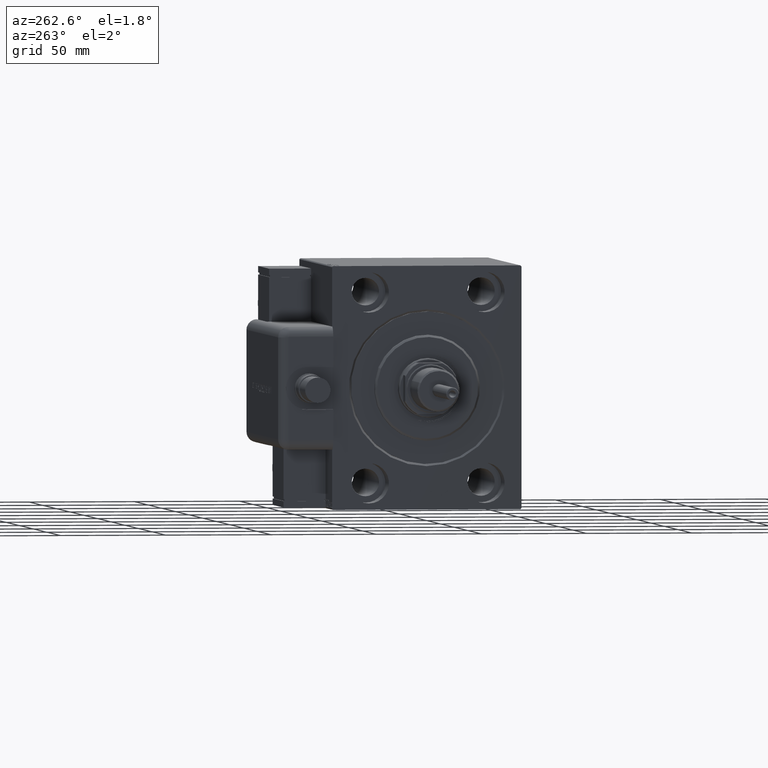
[diagram: clean part render]
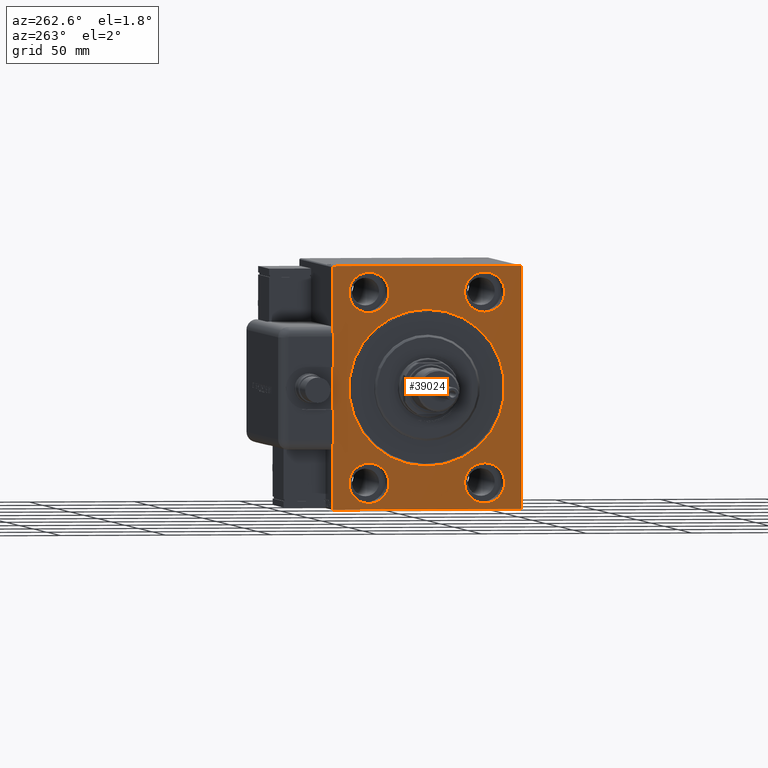
[diagram: same view with one face highlighted and labeled with its STEP entity id]
A machine part, auxiliary view. The second image highlights one B-rep face of the part: STEP entity #39024.
In plain terms, the highlighted planar face has unit normal (1, 0, 0).
Its self-contained STEP definition (entity closure, byte-faithful):
#179 = DIRECTION ( 'NONE',  ( -1.000000000000000000, 0.000000000000000000, 0.000000000000000000 ) ) ;
#1364 = ORIENTED_EDGE ( 'NONE', *, *, #54391, .F. ) ;
#1403 = CARTESIAN_POINT ( 'NONE',  ( 0.000000000000000000, -45.00000000000000000, -57.50000000000001421 ) ) ;
#1863 = DIRECTION ( 'NONE',  ( -1.000000000000000000, 0.000000000000000000, 0.000000000000000000 ) ) ;
#2289 = LINE ( 'NONE', #20552, #16722 ) ;
#2396 = VERTEX_POINT ( 'NONE', #21268 ) ;
#2467 = EDGE_LOOP ( 'NONE', ( #25810, #50177 ) ) ;
#2539 = EDGE_CURVE ( 'NONE', #24077, #59270, #34191, .T. ) ;
#2614 = FACE_BOUND ( 'NONE', #2467, .T. ) ;
#2809 = CIRCLE ( 'NONE', #40303, 9.500000000000001776 ) ;
#3446 = EDGE_CURVE ( 'NONE', #31171, #5051, #59015, .T. ) ;
#3763 = EDGE_CURVE ( 'NONE', #22023, #5314, #19597, .T. ) ;
#3825 = DIRECTION ( 'NONE',  ( 1.000000000000000000, 0.000000000000000000, 0.000000000000000000 ) ) ;
#4139 = EDGE_CURVE ( 'NONE', #20532, #24626, #8711, .T. ) ;
#5000 = EDGE_LOOP ( 'NONE', ( #30606, #30364, #25528, #57837, #56919, #53265, #47153, #14668 ) ) ;
#5051 = VERTEX_POINT ( 'NONE', #60961 ) ;
#5314 = VERTEX_POINT ( 'NONE', #57414 ) ;
#5555 = DIRECTION ( 'NONE',  ( -1.000000000000000000, 0.000000000000000000, 0.000000000000000000 ) ) ;
#5680 = ORIENTED_EDGE ( 'NONE', *, *, #3446, .F. ) ;
#5776 = VERTEX_POINT ( 'NONE', #16214 ) ;
#6190 = EDGE_CURVE ( 'NONE', #10074, #5776, #22209, .T. ) ;
#6307 = CARTESIAN_POINT ( 'NONE',  ( 0.000000000000000000, 0.000000000000000000, 0.000000000000000000 ) ) ;
#6381 = VERTEX_POINT ( 'NONE', #15702 ) ;
#6712 = EDGE_CURVE ( 'NONE', #58173, #59949, #2289, .T. ) ;
#7199 = EDGE_LOOP ( 'NONE', ( #21769, #51582 ) ) ;
#7654 = VECTOR ( 'NONE', #58003, 1000.000000000000114 ) ;
#7696 = AXIS2_PLACEMENT_3D ( 'NONE', #30762, #16576, #40331 ) ;
#7849 = FACE_BOUND ( 'NONE', #7199, .T. ) ;
#7972 = DIRECTION ( 'NONE',  ( -0.000000000000000000, 0.7071067811865474617, 0.7071067811865474617 ) ) ;
#8378 = EDGE_CURVE ( 'NONE', #10074, #59949, #41847, .T. ) ;
#8711 = CIRCLE ( 'NONE', #58066, 9.500000000000001776 ) ;
#9333 = EDGE_CURVE ( 'NONE', #17832, #53588, #13755, .T. ) ;
#9651 = DIRECTION ( 'NONE',  ( -1.000000000000000000, 0.000000000000000000, 0.000000000000000000 ) ) ;
#10074 = VERTEX_POINT ( 'NONE', #36297 ) ;
#10094 = LINE ( 'NONE', #47804, #18073 ) ;
#10139 = CIRCLE ( 'NONE', #33822, 9.500000000000001776 ) ;
#11065 = VECTOR ( 'NONE', #21168, 1000.000000000000000 ) ;
#11730 = CARTESIAN_POINT ( 'NONE',  ( 0.000000000000000000, 0.000000000000000000, 0.000000000000000000 ) ) ;
#12707 = AXIS2_PLACEMENT_3D ( 'NONE', #31944, #3825, #36261 ) ;
#12810 = FACE_BOUND ( 'NONE', #42147, .T. ) ;
#13046 = CIRCLE ( 'NONE', #48565, 9.500000000000001776 ) ;
#13080 = CIRCLE ( 'NONE', #41695, 37.00000000000003553 ) ;
#13437 = CARTESIAN_POINT ( 'NONE',  ( 0.000000000000000000, 27.50000000000000000, 35.50000000000000000 ) ) ;
#13755 = CIRCLE ( 'NONE', #29551, 9.500000000000001776 ) ;
#14099 = CARTESIAN_POINT ( 'NONE',  ( 0.000000000000000000, -27.50000000000000000, -45.00000000000000000 ) ) ;
#14278 = CIRCLE ( 'NONE', #34939, 9.500000000000001776 ) ;
#14632 = ORIENTED_EDGE ( 'NONE', *, *, #4139, .F. ) ;
#14668 = ORIENTED_EDGE ( 'NONE', *, *, #6712, .T. ) ;
#15702 = CARTESIAN_POINT ( 'NONE',  ( 0.000000000000000000, -27.50000000000000000, 54.50000000000000000 ) ) ;
#15769 = DIRECTION ( 'NONE',  ( 0.000000000000000000, 0.000000000000000000, 1.000000000000000000 ) ) ;
#15778 = DIRECTION ( 'NONE',  ( 1.000000000000000000, 0.000000000000000000, 0.000000000000000000 ) ) ;
#16126 = EDGE_CURVE ( 'NONE', #58173, #2396, #39697, .T. ) ;
#16214 = CARTESIAN_POINT ( 'NONE',  ( 0.000000000000000000, -44.50000000000000000, 57.49999999999998579 ) ) ;
#16576 = DIRECTION ( 'NONE',  ( -1.000000000000000000, 0.000000000000000000, 0.000000000000000000 ) ) ;
#16722 = VECTOR ( 'NONE', #21152, 1000.000000000000114 ) ;
#16963 = CARTESIAN_POINT ( 'NONE',  ( 0.000000000000000000, -44.50000000000002842, -57.50000000000001421 ) ) ;
#17832 = VERTEX_POINT ( 'NONE', #54389 ) ;
#18073 = VECTOR ( 'NONE', #53056, 1000.000000000000000 ) ;
#18375 = CARTESIAN_POINT ( 'NONE',  ( 0.000000000000000000, -45.00000000000000000, 57.49999999999998579 ) ) ;
#18430 = LINE ( 'NONE', #55826, #34988 ) ;
#19597 = CIRCLE ( 'NONE', #45255, 37.00000000000003553 ) ;
#19993 = ORIENTED_EDGE ( 'NONE', *, *, #23413, .F. ) ;
#20532 = VERTEX_POINT ( 'NONE', #44474 ) ;
#20552 = CARTESIAN_POINT ( 'NONE',  ( 0.000000000000000000, -44.50000000000002842, -57.50000000000001421 ) ) ;
#21152 = DIRECTION ( 'NONE',  ( -0.000000000000000000, -0.7071067811865474617, 0.7071067811865474617 ) ) ;
#21168 = DIRECTION ( 'NONE',  ( 0.000000000000000000, 1.000000000000000000, 0.000000000000000000 ) ) ;
#21268 = CARTESIAN_POINT ( 'NONE',  ( 0.000000000000000000, 44.49999999999995737, -57.50000000000001421 ) ) ;
#21309 = EDGE_CURVE ( 'NONE', #5314, #22023, #13080, .T. ) ;
#21769 = ORIENTED_EDGE ( 'NONE', *, *, #9333, .F. ) ;
#22023 = VERTEX_POINT ( 'NONE', #53532 ) ;
#22209 = LINE ( 'NONE', #37313, #46307 ) ;
#23413 = EDGE_CURVE ( 'NONE', #6381, #46017, #23988, .T. ) ;
#23988 = CIRCLE ( 'NONE', #58529, 9.500000000000001776 ) ;
#24077 = VERTEX_POINT ( 'NONE', #33088 ) ;
#24626 = VERTEX_POINT ( 'NONE', #45556 ) ;
#25528 = ORIENTED_EDGE ( 'NONE', *, *, #47484, .F. ) ;
#25810 = ORIENTED_EDGE ( 'NONE', *, *, #21309, .T. ) ;
#26701 = FACE_OUTER_BOUND ( 'NONE', #5000, .T. ) ;
#27087 = EDGE_CURVE ( 'NONE', #39422, #2396, #18430, .T. ) ;
#27377 = DIRECTION ( 'NONE',  ( 0.000000000000000000, 0.000000000000000000, 1.000000000000000000 ) ) ;
#27500 = VECTOR ( 'NONE', #27629, 1000.000000000000000 ) ;
#27629 = DIRECTION ( 'NONE',  ( 0.000000000000000000, 0.000000000000000000, -1.000000000000000000 ) ) ;
#27675 = DIRECTION ( 'NONE',  ( -1.000000000000000000, 0.000000000000000000, 0.000000000000000000 ) ) ;
#27848 = CARTESIAN_POINT ( 'NONE',  ( 0.000000000000000000, 45.00000000000000000, -57.00000000000001421 ) ) ;
#28007 = CARTESIAN_POINT ( 'NONE',  ( 0.000000000000000000, -27.50000000000000000, 35.50000000000000000 ) ) ;
#29496 = DIRECTION ( 'NONE',  ( 0.000000000000000000, 0.000000000000000000, -1.000000000000000000 ) ) ;
#29551 = AXIS2_PLACEMENT_3D ( 'NONE', #31282, #36520, #54792 ) ;
#30127 = DIRECTION ( 'NONE',  ( -1.000000000000000000, 0.000000000000000000, 0.000000000000000000 ) ) ;
#30364 = ORIENTED_EDGE ( 'NONE', *, *, #6190, .T. ) ;
#30606 = ORIENTED_EDGE ( 'NONE', *, *, #8378, .F. ) ;
#30762 = CARTESIAN_POINT ( 'NONE',  ( 0.000000000000000000, 27.50000000000000000, 45.00000000000000000 ) ) ;
#31171 = VERTEX_POINT ( 'NONE', #13437 ) ;
#31282 = CARTESIAN_POINT ( 'NONE',  ( 0.000000000000000000, 27.50000000000000000, -45.00000000000000000 ) ) ;
#31944 = CARTESIAN_POINT ( 'NONE',  ( 0.000000000000000000, 0.000000000000000000, 0.000000000000000000 ) ) ;
#33088 = CARTESIAN_POINT ( 'NONE',  ( 0.000000000000000000, 44.50000000000001421, 57.50000000000000000 ) ) ;
#33822 = AXIS2_PLACEMENT_3D ( 'NONE', #39218, #5555, #15769 ) ;
#33850 = CARTESIAN_POINT ( 'NONE',  ( 0.000000000000000000, 27.50000000000000000, -45.00000000000000000 ) ) ;
#34191 = LINE ( 'NONE', #53061, #7654 ) ;
#34939 = AXIS2_PLACEMENT_3D ( 'NONE', #53792, #1863, #40154 ) ;
#34988 = VECTOR ( 'NONE', #60447, 999.9999999999998863 ) ;
#35507 = EDGE_LOOP ( 'NONE', ( #57516, #5680 ) ) ;
#36261 = DIRECTION ( 'NONE',  ( 0.000000000000000000, 0.000000000000000000, -1.000000000000000000 ) ) ;
#36297 = CARTESIAN_POINT ( 'NONE',  ( 0.000000000000000000, -45.00000000000000000, 57.00000000000001421 ) ) ;
#36520 = DIRECTION ( 'NONE',  ( -1.000000000000000000, 0.000000000000000000, 0.000000000000000000 ) ) ;
#37058 = DIRECTION ( 'NONE',  ( 0.000000000000000000, -1.000000000000000000, -1.541976423090495633E-16 ) ) ;
#37313 = CARTESIAN_POINT ( 'NONE',  ( 0.000000000000000000, -45.00000000000000000, 57.00000000000001421 ) ) ;
#37928 = EDGE_CURVE ( 'NONE', #53588, #17832, #2809, .T. ) ;
#39024 = ADVANCED_FACE ( 'NONE', ( #2614, #12810, #59765, #59470, #7849, #26701 ), #59163, .F. ) ;
#39218 = CARTESIAN_POINT ( 'NONE',  ( 0.000000000000000000, -27.50000000000000000, 45.00000000000000000 ) ) ;
#39241 = CARTESIAN_POINT ( 'NONE',  ( 0.000000000000000000, 44.99999999999998579, 57.00000000000000000 ) ) ;
#39422 = VERTEX_POINT ( 'NONE', #27848 ) ;
#39697 = LINE ( 'NONE', #1403, #11065 ) ;
#40154 = DIRECTION ( 'NONE',  ( 0.000000000000000000, 0.000000000000000000, 1.000000000000000000 ) ) ;
#40303 = AXIS2_PLACEMENT_3D ( 'NONE', #33850, #30127, #48684 ) ;
#40331 = DIRECTION ( 'NONE',  ( 0.000000000000000000, 0.000000000000000000, 1.000000000000000000 ) ) ;
#41695 = AXIS2_PLACEMENT_3D ( 'NONE', #11730, #15778, #58103 ) ;
#41847 = LINE ( 'NONE', #18375, #27500 ) ;
#41892 = DIRECTION ( 'NONE',  ( 0.000000000000000000, 0.000000000000000000, 1.000000000000000000 ) ) ;
#42147 = EDGE_LOOP ( 'NONE', ( #14632, #1364 ) ) ;
#42404 = CARTESIAN_POINT ( 'NONE',  ( 0.000000000000000000, -27.50000000000000000, -45.00000000000000000 ) ) ;
#44474 = CARTESIAN_POINT ( 'NONE',  ( 0.000000000000000000, -27.50000000000000000, -35.50000000000000000 ) ) ;
#45255 = AXIS2_PLACEMENT_3D ( 'NONE', #6307, #48651, #29496 ) ;
#45556 = CARTESIAN_POINT ( 'NONE',  ( 0.000000000000000000, -27.50000000000000000, -54.50000000000000000 ) ) ;
#46017 = VERTEX_POINT ( 'NONE', #28007 ) ;
#46307 = VECTOR ( 'NONE', #7972, 1000.000000000000114 ) ;
#46347 = LINE ( 'NONE', #55632, #50408 ) ;
#46535 = CARTESIAN_POINT ( 'NONE',  ( 0.000000000000000000, -27.50000000000000000, 45.00000000000000000 ) ) ;
#47153 = ORIENTED_EDGE ( 'NONE', *, *, #16126, .F. ) ;
#47484 = EDGE_CURVE ( 'NONE', #24077, #5776, #46347, .T. ) ;
#47804 = CARTESIAN_POINT ( 'NONE',  ( 0.000000000000000000, 45.00000000000000000, -57.50000000000001421 ) ) ;
#48565 = AXIS2_PLACEMENT_3D ( 'NONE', #14099, #179, #27377 ) ;
#48651 = DIRECTION ( 'NONE',  ( 1.000000000000000000, 0.000000000000000000, 0.000000000000000000 ) ) ;
#48679 = CARTESIAN_POINT ( 'NONE',  ( 0.000000000000000000, 27.50000000000000000, -54.50000000000000000 ) ) ;
#48684 = DIRECTION ( 'NONE',  ( 0.000000000000000000, 0.000000000000000000, 1.000000000000000000 ) ) ;
#50177 = ORIENTED_EDGE ( 'NONE', *, *, #3763, .T. ) ;
#50408 = VECTOR ( 'NONE', #37058, 1000.000000000000000 ) ;
#51582 = ORIENTED_EDGE ( 'NONE', *, *, #37928, .F. ) ;
#51719 = ORIENTED_EDGE ( 'NONE', *, *, #54990, .F. ) ;
#53056 = DIRECTION ( 'NONE',  ( 0.000000000000000000, -1.206764157201257045E-16, 1.000000000000000000 ) ) ;
#53061 = CARTESIAN_POINT ( 'NONE',  ( 0.000000000000000000, 44.50000000000001421, 57.50000000000000000 ) ) ;
#53265 = ORIENTED_EDGE ( 'NONE', *, *, #27087, .T. ) ;
#53532 = CARTESIAN_POINT ( 'NONE',  ( 0.000000000000000000, 4.531193156845210737E-15, -37.00000000000003553 ) ) ;
#53588 = VERTEX_POINT ( 'NONE', #48679 ) ;
#53792 = CARTESIAN_POINT ( 'NONE',  ( 0.000000000000000000, 27.50000000000000000, 45.00000000000000000 ) ) ;
#54389 = CARTESIAN_POINT ( 'NONE',  ( 0.000000000000000000, 27.50000000000000000, -35.50000000000000000 ) ) ;
#54391 = EDGE_CURVE ( 'NONE', #24626, #20532, #13046, .T. ) ;
#54792 = DIRECTION ( 'NONE',  ( 0.000000000000000000, 0.000000000000000000, 1.000000000000000000 ) ) ;
#54990 = EDGE_CURVE ( 'NONE', #46017, #6381, #10139, .T. ) ;
#55632 = CARTESIAN_POINT ( 'NONE',  ( 0.000000000000000000, 44.99999999999998579, 57.50000000000000000 ) ) ;
#55826 = CARTESIAN_POINT ( 'NONE',  ( 0.000000000000000000, 45.00000000000000000, -57.00000000000001421 ) ) ;
#56002 = EDGE_CURVE ( 'NONE', #39422, #59270, #10094, .T. ) ;
#56919 = ORIENTED_EDGE ( 'NONE', *, *, #56002, .F. ) ;
#57414 = CARTESIAN_POINT ( 'NONE',  ( 0.000000000000000000, 0.000000000000000000, 37.00000000000003553 ) ) ;
#57516 = ORIENTED_EDGE ( 'NONE', *, *, #60217, .F. ) ;
#57557 = DIRECTION ( 'NONE',  ( 0.000000000000000000, 0.000000000000000000, 1.000000000000000000 ) ) ;
#57624 = EDGE_LOOP ( 'NONE', ( #19993, #51719 ) ) ;
#57837 = ORIENTED_EDGE ( 'NONE', *, *, #2539, .T. ) ;
#58003 = DIRECTION ( 'NONE',  ( -0.000000000000000000, 0.7071067811865474617, -0.7071067811865474617 ) ) ;
#58066 = AXIS2_PLACEMENT_3D ( 'NONE', #42404, #9651, #57557 ) ;
#58103 = DIRECTION ( 'NONE',  ( 0.000000000000000000, 0.000000000000000000, -1.000000000000000000 ) ) ;
#58173 = VERTEX_POINT ( 'NONE', #16963 ) ;
#58529 = AXIS2_PLACEMENT_3D ( 'NONE', #46535, #27675, #41892 ) ;
#59015 = CIRCLE ( 'NONE', #7696, 9.500000000000001776 ) ;
#59163 = PLANE ( 'NONE',  #12707 ) ;
#59270 = VERTEX_POINT ( 'NONE', #39241 ) ;
#59470 = FACE_BOUND ( 'NONE', #35507, .T. ) ;
#59765 = FACE_BOUND ( 'NONE', #57624, .T. ) ;
#59949 = VERTEX_POINT ( 'NONE', #59989 ) ;
#59989 = CARTESIAN_POINT ( 'NONE',  ( 0.000000000000000000, -45.00000000000000000, -57.00000000000004263 ) ) ;
#60217 = EDGE_CURVE ( 'NONE', #5051, #31171, #14278, .T. ) ;
#60447 = DIRECTION ( 'NONE',  ( 0.000000000000000000, -0.7071067811865574537, -0.7071067811865376918 ) ) ;
#60961 = CARTESIAN_POINT ( 'NONE',  ( 0.000000000000000000, 27.50000000000000000, 54.50000000000000000 ) ) ;